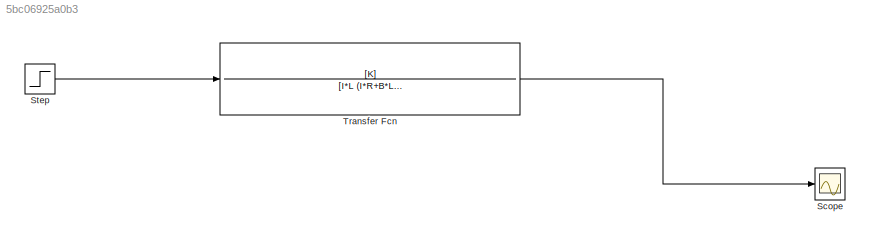
MODEL slx_5bc06925a0b3
KIND model
CONFIG AbsTol = auto
CONFIG EnableMultiTasking = off
CONFIG FixedStep = auto
CONFIG MaxStep = auto
CONFIG MinStep = auto
CONFIG RelTol = 1e-3
CONFIG SampleTimeConstraint = Unconstrained
CONFIG SolverName = VariableStepAuto
CONFIG StartTime = 0.0
CONFIG StopTime = 10.0
WORKSPACE source: mxarray member
WORKSPACE B = 0.43073
WORKSPACE I = 0.17315
WORKSPACE K = 77.703
WORKSPACE Ke = 0.64995
WORKSPACE L = 3.8872
WORKSPACE R = 136.25
WORKSPACE a = 598.970771649
WORKSPACE b = 807.294545115
BLOCK [Scope] Scope
  Floating = off
  NumInputPorts = 1
  ScopeSpecificationString = Simulink.scopes.TimeScopeBlockCfg('CurrentConfiguration', extmgr.ConfigurationSet(extmgr.Configuration('Core','General UI',true),extmgr.Configuration('Core','Source UI',true),extmgr.Configuration('Sources','WiredSimulink',true),extmgr.Configuration('Visuals','Time Domain',true,'SerializedDisplays',{struct('MinYLimReal','-0.71163','MaxYLimReal','6.40468','YLabelReal','','MinYLimMag','0.00000','MaxY...<+1698ch>
BLOCK [Step] Step
  After = 8
  SampleTime = 0.03
  Time = 0
BLOCK [TransferFcn] Transfer Fcn
  Denominator = [I*L (I*R+B*L) (B*R+K*Ke)]
  Numerator = [K]
LINE Step:1 -> Transfer Fcn:1
LINE Transfer Fcn:1 -> Scope:1
